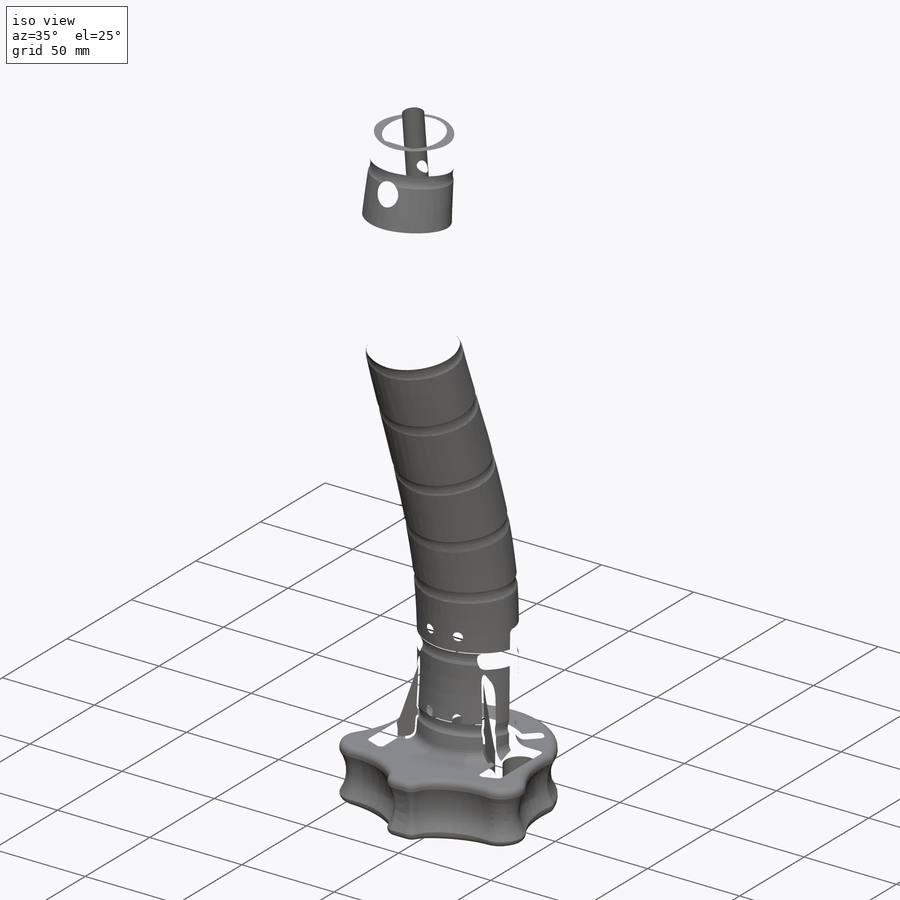
[diagram: iso view]
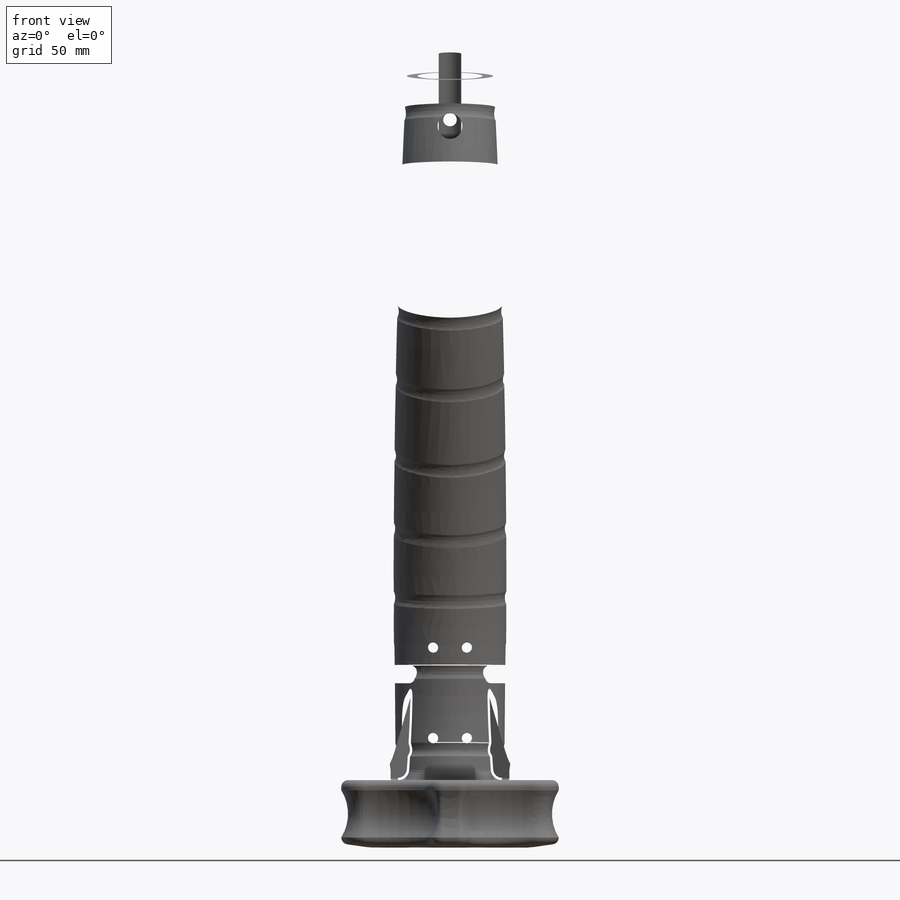
[diagram: front view]
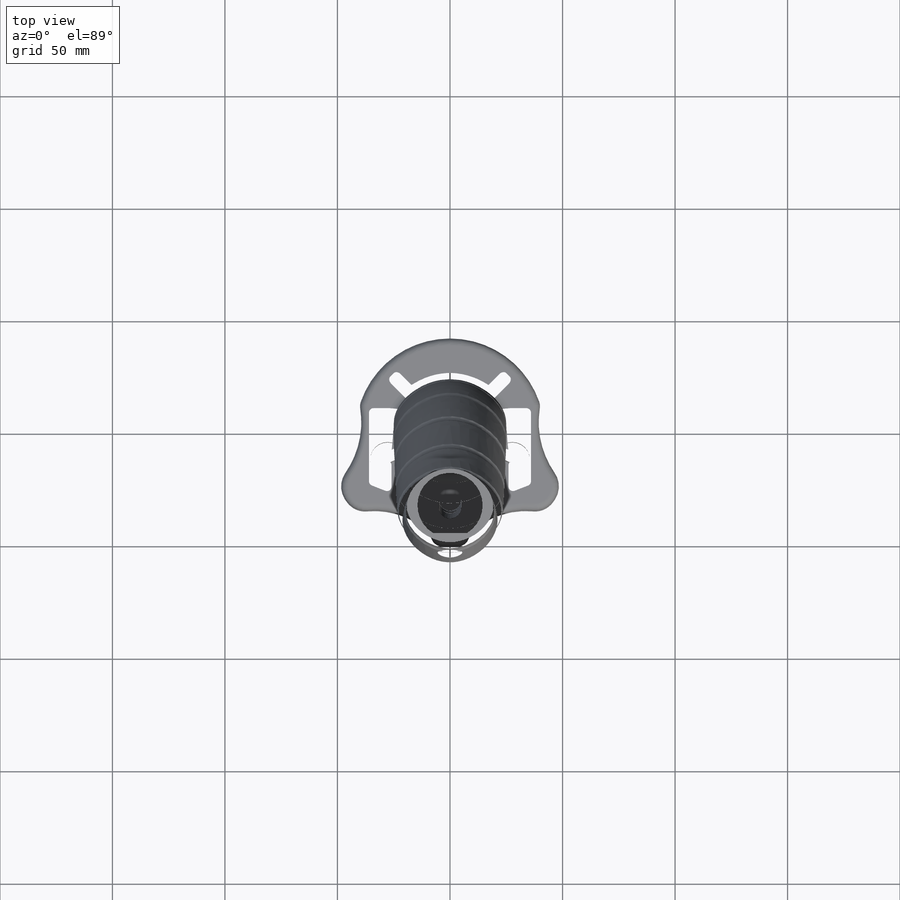
[diagram: top view]
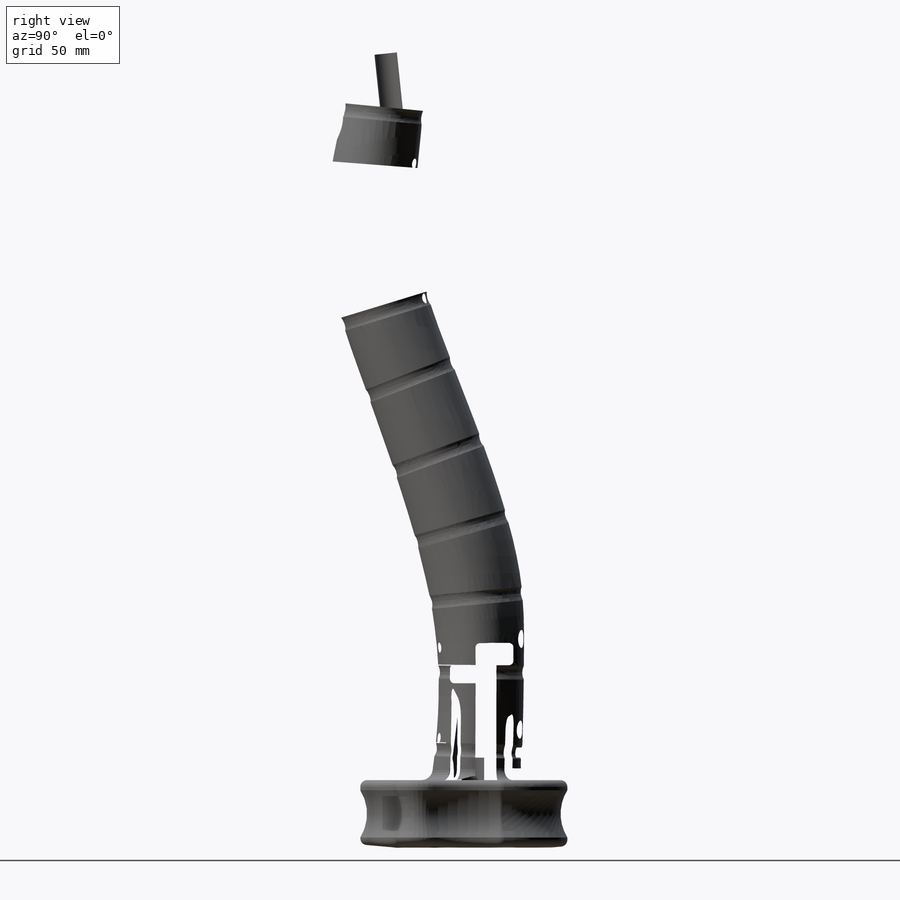
[diagram: right view]
SOLIDWORKS PART (.sldprt)
format: sldprt  version: not decoded by parser v0  size: 9,922,560 bytes
history: native  units: mm
features: mirror x35, sketch x34, plane x24, cut_extrude x18, extrude x11, move_body x8, fillet x3, delete_body x3, boolean_combine x3, cut_revolve x2, pattern_circular x2, material x1 + 7 further entries (+22 scaffold rows collapsed; 9 parser-record rows omitted)
feature tree (182):
  scaffold x22  (default folders/planes/origin — collapsed)
  material  "Material <nicht festgelegt>"
  plane  "Vorne"
  plane  "Oben"
  plane  "Rechts"
  sketch  "Skizze1"  dims[D1=40.0mm D2=50.0mm]
  extrude  "Aufsatz-Linear austragen1"  Depth=30mm
  plane  "Ebene1"  Offset=3mm
  plane  "Ebene2"  Offset=3mm
  sketch  "Skizze3"  dims[D1=25.0mm D2=3.0mm]
  cut_revolve  "Schnitt-Rotation2"  Angle=360deg
  sketch  "Skizze5"  dims[c1.D1=22.0mm c1.D2=33.0mm c2.D2=22.5deg]
  extrude  "Aufsatz-Linear austragen2"  [1 undecoded]
  sketch  "Skizze7"  dims[D1=15.5mm]
  cut_extrude  "Schnitt-Linear austragen1"  Depth=11.5mm
  pattern_circular  "Kreismuster1"  Count=8 Angle=360deg
  sketch  "Skizze8"  dims[D1=10.0mm]
  cut_extrude  "Schnitt-Linear austragen2"  [1 undecoded]
  sketch  "Skizze10"  dims[c1.D1=~25.252691mm c1.D3=13.0mm c1.D4=~7.679008mm c2.D1=60.0mm c2.D5=40.0mm c2.D9=35.0mm c3.D1=~38.386654mm c4.D1=67.0deg c4.D2=55.0mm c4.D4=55.0mm c5.D1=~165.136938mm c5.D4=60.0mm c6.D1=~49.156823mm c6.D2=~32.099018mm c7.D1=~30.489363mm c7.D2=~327.275441mm c8.D1=45.0mm c8.D2=32.0mm c8.D3=15.0mm c8.D4=25.0mm c8.D5=~43.206556mm c9.D2=30.0mm c9.D3=15.0mm c9.D6=17.0mm c9.D7=15.0mm c9.D1=55.0mm c10.D2=42.0mm c10.D3=5.0mm c10.D4=33.0mm c11.D4=122.0deg c11.D6=~5.060359mm c12.D6=100.0deg c12.D7=15.0mm c12.D8=5.0mm c12.D10=15.0mm c12.D11=50.0mm c12.D13=~81.774651mm c12.D1=0.0mm c12.D5=0.0mm c12.D12=0.0mm]
  extrude  "Aufsatz-Linear austragen4"  [1 undecoded]
  mirror  "Spiegeln1"
  fillet  "Verrundung1"  Radius=10mm
  mirror  "Verrundung2"
  sketch  "Skizze9"  dims[c1.D1=~50.196923mm c2.D1=10.0deg c3.D1=50.0mm c3.D2=~20.493034mm c4.D2=5.0deg c4.D3=~0.060117mm c4.D1=10.0mm c5.D2=~38.056485mm c6.D2=5.0deg c6.D3=100.0mm c7.D2=55.0mm c8.D2=5.0deg c8.D4=55.0mm]
  cut_revolve  "Schnitt-Rotation7"  Angle=360deg
  sketch  "Skizze11"  dims[D1=3.0mm]
  sketch  "Skizze12"  dims[c1.D1=28.0mm c1.D2=~25.21904mm c2.D1=21.0mm]
  delete_body  "Körper-Löschen1"
  mirror  "Verrundung3"
  "p-wirbelsäule-torso"
  parser-record x9  (decoder bookkeeping rows leaked as tree rows — omitted from the tree; the rows remain in map.json)
  move_body  "Körper-Verschieben/Kopieren2"
  "Deckungsgleich1"
  "Konzentrisch1"
  boolean_combine  "Kombinieren1"
  mirror  "Verrundung4"
  plane  "Ebene3"
  mirror  "Verrundung12"
  sketch  "Skizze13"  dims[c1.D1=36.0mm c1.D2=30.0mm c1.D3=22.0mm c1.D4=8.0mm c2.D1=4.0mm]
  pattern_circular  "Kreismuster2"  Count=16 Angle=360deg
  mirror  "Verrundung5"
  mirror  "Verrundung9"
  mirror  "Verrundung13"
  sketch  "Skizze14"  dims[D1=2.0mm D2=2.0mm]
  cut_extrude  "Schnitt-Linear austragen3"  Depth=15mm
  sketch  "Skizze16"  dims[D1=~6.873406mm]
  cut_extrude  "Schnitt-Linear austragen4"  Depth=21mm
  mirror  "Verrundung15"
  plane  "Ebene4"  Offset=7.09mm
  plane  "Ebene5"  Offset=275.79mm
  sketch  "Skizze17"  dims[D1=7.09mm D2=275.79mm]
  plane  "X-Hilfsebene"  Offset=40mm
  plane  "Z-Hilfsebene"  Offset=70mm
  plane  "Y-Hilfsebene"  Offset=33mm
  extrude  "Achse2"  [1 undecoded]
  plane  "Y-Antrieb bauch"
  plane  "Z-Antrieb bauch"
  extrude  "Achse4"  [1 undecoded]
  plane  "X-Antrieb bauch"
  plane  "X-Antrieb hinten"  Offset=88mm
  plane  "Y-Hilfsebene hinten"
  plane  "Y-Antrieb hinten"  Offset=33mm
  plane  "Z-Hilfsebene hinten"  Offset=70mm
  extrude  "Achse5"  [1 undecoded]
  plane  "Vorne-a-antriebstrang-ec16-v01-re"
  plane  "Oben-a-antriebstrang-ec16-v01-re"
  plane  "Rechts-a-antriebstrang-ec16-v01-re"
  delete_body  "a-antriebstrang-ec16-v01-re"
  "Achsen4"
  move_body  "Körper-Verschieben/Kopieren6"
  move_body  "Deckungsgleich7"
  move_body  "Deckungsgleich8"
  plane  "Vorne-a-antriebstrang-ec16-v01-li"
  plane  "Oben-a-antriebstrang-ec16-v01-li"
  plane  "Rechts-a-antriebstrang-ec16-v01-li"
  delete_body  "a-antriebstrang-ec16-v01-li"
  "Achsen5"
  move_body  "Körper-Verschieben/Kopieren8"
  move_body  "Deckungsgleich9"
  move_body  "Deckungsgleich10"
  move_body  "Deckungsgleich12"
  fillet  "Körper-Löschen2"  [1 undecoded]
  sketch  "Skizze18"  dims[D1=3.0mm]
  extrude  "Aufsatz-Linear austragen5"  Depth=10mm
  sketch  "Skizze19"  dims[D1=3.0mm]
  extrude  "Aufsatz-Linear austragen6"  Depth=15mm
  boolean_combine  "Fläche verschieben2"
  sketch  "Skizze20"  dims[c1.D1=15.0mm c1.D2=30.0mm c1.D3=52.0mm c1.D4=40.0mm c1.D5=10.0mm c2.D3=70.0mm c2.D4=12.0mm]
  extrude  "Aufsatz-Linear austragen7"  Depth=5mm
  sketch  "Skizze21"  dims[c1.D1=38.0mm c1.D2=35.0mm c1.D3=15.0mm c1.D4=5.0mm c1.D5=30.0mm c2.D3=50.0mm]
  cut_extrude  "Schnitt-Linear austragen5"  [1 undecoded]
  sketch  "Skizze22"
  cut_extrude  "Schnitt-Linear austragen6"  [1 undecoded]
  sketch  "Skizze23"  dims[D1=11.0mm]
  extrude  "Aufsatz-Linear austragen8"  [1 undecoded]
  sketch  "Skizze27"  dims[D1=8.5mm]
  cut_extrude  "Schnitt-Linear austragen8"  [1 undecoded]
  sketch  "Skizze25"  dims[D2=8.0mm D1=0.0mm]
  cut_extrude  "Schnitt-Linear austragen7"  Depth=7mm
  sketch  "Skizze28"  dims[c1.D1=52.0mm c2.D1=~3.12954deg c3.D1=10.0mm c3.D2=8.0mm c3.D3=8.0mm c3.D4=12.0mm]
  cut_extrude  "Schnitt-Linear austragen9"  Depth=8mm
  sketch  "Skizze29"  dims[c1.D1=8.0mm c1.D2=2.0mm c1.D3=~2.406804mm c2.D2=4.0mm c2.D3=35.0mm c2.D4=8.0mm]
  extrude  "Aufsatz-Linear austragen10"  Depth=13mm
  sketch  "Skizze31"  dims[D1=10.0mm D2=10.0mm D3=5.0mm]
  cut_extrude  "Schnitt-Linear austragen12"  Depth=20mm
  sketch  "Skizze39"  dims[D1=8.0mm]
  cut_extrude  "Schnitt-Linear austragen20"  Depth=20mm
  sketch  "Skizze30"
  cut_extrude  "Schnitt-Linear austragen11"  Depth=20mm
  sketch  "Skizze32"  dims[D1=3.0mm]
  cut_extrude  "Schnitt-Linear austragen15"  Depth=20mm
  fillet  "Körper-Löschen4"  [1 undecoded]
  sketch  "Skizze38"
  cut_extrude  "Schnitt-Linear austragen19"  Depth=20mm
  sketch  "Skizze35"  dims[D1=7.4mm]
  cut_extrude  "Schnitt-Linear austragen17"  Depth=4mm
  sketch  "Skizze36"  dims[D1=7.4mm]
  cut_extrude  "Schnitt-Linear austragen18"  Depth=4mm
  sketch  "Skizze40"  dims[D1=6.5mm]
  cut_extrude  "Schnitt-Linear austragen21"  Depth=20mm
  sketch  "Skizze41"
  cut_extrude  "Schnitt-Linear austragen22"  Depth=20mm
  sketch  "Skizze42"  dims[D1=10.0mm D2=10.0mm D3=1.0mm D4=2.0mm D5=8.0mm]
  "Verstärkungsrippe5"
  sketch  "Skizze44"  dims[c1.D1=7.0mm c1.D2=6.0mm c1.D3=12.0mm c2.D2=4.0mm]
  "Verstärkungsrippe9"
  mirror  "Verrundung18"
  mirror  "Verrundung19"
  mirror  "Verrundung20"
  mirror  "Verrundung23"
  mirror  "Verrundung24"
  mirror  "Verrundung25"
  mirror  "Verrundung26"
  mirror  "Verrundung30"
  mirror  "Verrundung31"
  mirror  "Verrundung55"
  mirror  "Verrundung32"
  mirror  "Verrundung33"
  mirror  "Verrundung34"
  mirror  "Verrundung36"
  mirror  "Verrundung40"
  mirror  "Verrundung37"
  mirror  "Verrundung52"
  mirror  "Verrundung42"
  mirror  "Verrundung44"
  mirror  "Verrundung45"
  mirror  "Verrundung46"
  mirror  "Verrundung47"
  mirror  "Verrundung54"
  mirror  "Spiegeln5"
  boolean_combine  "Kombinieren4"
  mirror  "Verrundung43"
  mirror  "Verrundung56"
decode coverage: 54 of 119 modeling features carry decoded parameters; 7 rows unclassified (native names shown)
note: ~ marks probable driven/reference dimensions
note: 12 parameter values undecoded
summary: no parameter record found for 12 features
note: suppression state not decoded; provenance and decode notes live in map.json
